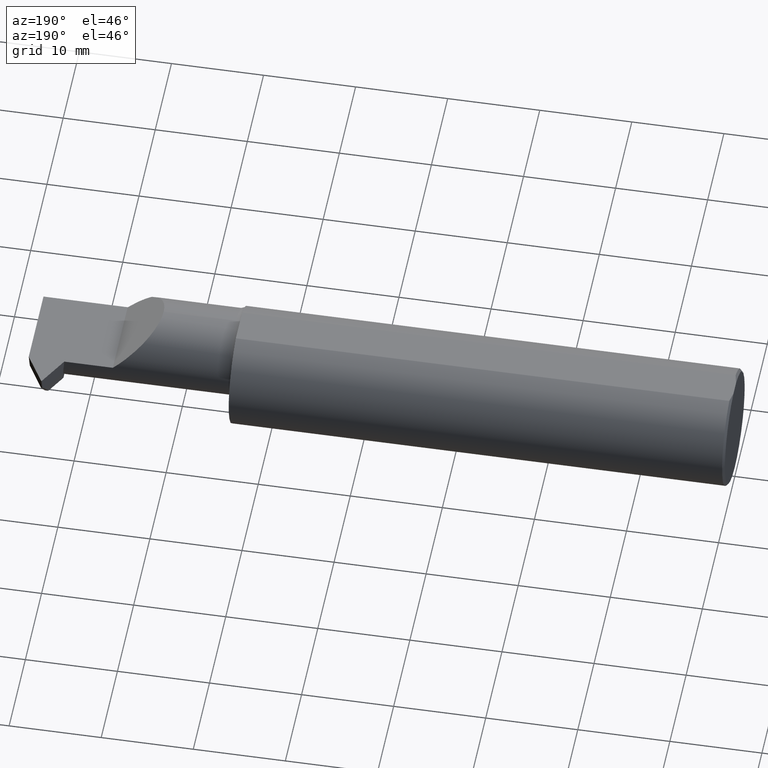
[diagram: clean part render]
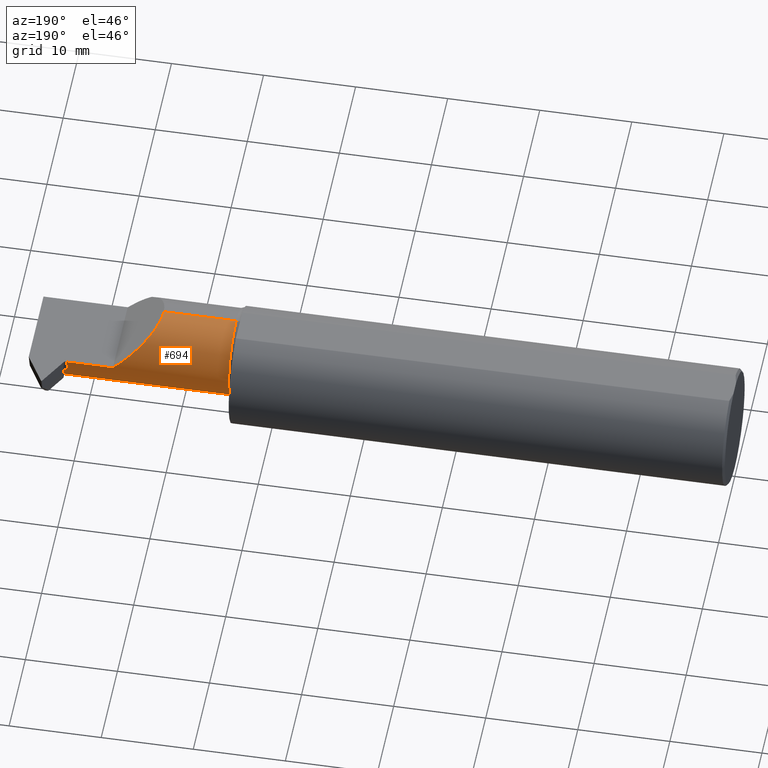
[diagram: same view with one face highlighted and labeled with its STEP entity id]
A machine part, auxiliary view. The second image highlights one B-rep face of the part: STEP entity #694.
In plain terms, the highlighted cylindrical surface (partial cylindrical patch) has radius 4.699 mm, axis along (-1, -0, -0).
Its self-contained STEP definition (entity closure, byte-faithful):
#1 = CARTESIAN_POINT ( 'NONE',  ( 2.120000000000000551, -0.07485000000000026354, 0.000000000000000000 ) ) ;
#30 = ORIENTED_EDGE ( 'NONE', *, *, #716, .T. ) ;
#55 = CIRCLE ( 'NONE', #665, 0.1850000000000001643 ) ;
#57 = CARTESIAN_POINT ( 'NONE',  ( 2.853001020151782363, 0.1007937133637520494, -0.05808860435397016075 ) ) ;
#66 = CARTESIAN_POINT ( 'NONE',  ( 2.855038634497241823, 0.04932020012937191056, -0.1371377460797418013 ) ) ;
#79 = FACE_BOUND ( 'NONE', #389, .T. ) ;
#86 = ORIENTED_EDGE ( 'NONE', *, *, #247, .F. ) ;
#89 = LINE ( 'NONE', #802, #229 ) ;
#99 = LINE ( 'NONE', #812, #797 ) ;
#112 = VERTEX_POINT ( 'NONE', #217 ) ;
#135 =( BOUNDED_CURVE ( )  B_SPLINE_CURVE ( 3, ( #580, #355, #913, #708 ),
 .UNSPECIFIED., .F., .T. ) 
 B_SPLINE_CURVE_WITH_KNOTS ( ( 4, 4 ),
 ( 0.000000000000000000, 1.570796326794895892 ),
 .UNSPECIFIED. ) 
 CURVE ( )  GEOMETRIC_REPRESENTATION_ITEM ( )  RATIONAL_B_SPLINE_CURVE ( ( 1.000000000000000000, 0.8047378541243652705, 0.8047378541243652705, 1.000000000000000000 ) ) 
 REPRESENTATION_ITEM ( '' )  );
#147 = ORIENTED_EDGE ( 'NONE', *, *, #211, .T. ) ;
#150 = CARTESIAN_POINT ( 'NONE',  ( 2.856779504692432248, 0.06187106706801930034, -0.1257736708771146628 ) ) ;
#153 = CARTESIAN_POINT ( 'NONE',  ( 2.640000000000000124, 0.1101499999999998869, 2.574479715540877281E-16 ) ) ;
#155 = CARTESIAN_POINT ( 'NONE',  ( 2.835007723244581168, 0.1101499999999999146, -0.01978022500079915438 ) ) ;
#177 = ORIENTED_EDGE ( 'NONE', *, *, #290, .T. ) ;
#200 = DIRECTION ( 'NONE',  ( -1.000000000000000000, -0.000000000000000000, -0.000000000000000000 ) ) ;
#211 = EDGE_CURVE ( 'NONE', #473, #841, #99, .T. ) ;
#217 = CARTESIAN_POINT ( 'NONE',  ( 2.828837422171168736, 0.1007937133637520355, -0.05808860435397019545 ) ) ;
#226 = DIRECTION ( 'NONE',  ( -1.000000000000000000, -0.000000000000000000, -0.000000000000000000 ) ) ;
#229 = VECTOR ( 'NONE', #458, 39.37007874015748143 ) ;
#247 = EDGE_CURVE ( 'NONE', #595, #112, #89, .T. ) ;
#270 = CARTESIAN_POINT ( 'NONE',  ( 2.145000000000000018, -0.07485000000000026354, 0.000000000000000000 ) ) ;
#281 = CARTESIAN_POINT ( 'NONE',  ( 2.838193708807416282, 0.1101499999999998869, 0.000000000000000000 ) ) ;
#290 = EDGE_CURVE ( 'NONE', #573, #916, #807, .T. ) ;
#296 = CYLINDRICAL_SURFACE ( 'NONE', #386, 0.1850000000000001643 ) ;
#315 = CARTESIAN_POINT ( 'NONE',  ( 2.120000000000000551, 0.1101499999999998869, 2.574479715540877281E-16 ) ) ;
#316 = EDGE_LOOP ( 'NONE', ( #891, #147, #880, #496, #342, #177, #906, #86 ) ) ;
#330 =( BOUNDED_CURVE ( )  B_SPLINE_CURVE ( 3, ( #831, #693, #475, #57 ),
 .UNSPECIFIED., .F., .T. ) 
 B_SPLINE_CURVE_WITH_KNOTS ( ( 4, 4 ),
 ( 3.301290280147274547, 4.552691353827207799 ),
 .UNSPECIFIED. ) 
 CURVE ( )  GEOMETRIC_REPRESENTATION_ITEM ( )  RATIONAL_B_SPLINE_CURVE ( ( 1.000000000000000000, 0.8737020255688406900, 0.8737020255688406900, 1.000000000000000000 ) ) 
 REPRESENTATION_ITEM ( '' )  );
#331 = CARTESIAN_POINT ( 'NONE',  ( 2.145000000000000018, -0.07485000000000026354, 0.1850000000000001643 ) ) ;
#339 = VECTOR ( 'NONE', #814, 39.37007874015748143 ) ;
#342 = ORIENTED_EDGE ( 'NONE', *, *, #703, .T. ) ;
#355 = CARTESIAN_POINT ( 'NONE',  ( 2.454999999999998295, 0.03352049096097719366, 0.1850000000000001643 ) ) ;
#359 = DIRECTION ( 'NONE',  ( 0.000000000000000000, 0.000000000000000000, 1.000000000000000000 ) ) ;
#374 = DIRECTION ( 'NONE',  ( -1.000000000000000000, -0.000000000000000000, -0.000000000000000000 ) ) ;
#386 = AXIS2_PLACEMENT_3D ( 'NONE', #1, #226, #359 ) ;
#389 = EDGE_LOOP ( 'NONE', ( #30, #688 ) ) ;
#431 =( BOUNDED_CURVE ( )  B_SPLINE_CURVE ( 3, ( #777, #513, #155, #281 ),
 .UNSPECIFIED., .F., .T. ) 
 B_SPLINE_CURVE_WITH_KNOTS ( ( 4, 4 ),
 ( 1.251401073679933029, 1.570796326794896780 ),
 .UNSPECIFIED. ) 
 CURVE ( )  GEOMETRIC_REPRESENTATION_ITEM ( )  RATIONAL_B_SPLINE_CURVE ( ( 1.000000000000000000, 0.9915169412256910064, 0.9915169412256910064, 1.000000000000000000 ) ) 
 REPRESENTATION_ITEM ( '' )  );
#458 = DIRECTION ( 'NONE',  ( -1.000000000000000000, -0.000000000000000000, -0.000000000000000000 ) ) ;
#466 = EDGE_CURVE ( 'NONE', #473, #595, #330, .T. ) ;
#467 = CARTESIAN_POINT ( 'NONE',  ( 2.855038634497241823, -0.07485000000000026354, 0.000000000000000000 ) ) ;
#473 = VERTEX_POINT ( 'NONE', #492 ) ;
#475 = CARTESIAN_POINT ( 'NONE',  ( 2.860494700529673473, 0.07483484306337548353, -0.1365809769112830141 ) ) ;
#487 = EDGE_CURVE ( 'NONE', #503, #841, #510, .T. ) ;
#492 = CARTESIAN_POINT ( 'NONE',  ( 2.867068828528063218, -0.07485000000000023579, -0.1850000000000002476 ) ) ;
#495 = DIRECTION ( 'NONE',  ( 0.000000000000000000, 0.000000000000000000, 1.000000000000000000 ) ) ;
#496 = ORIENTED_EDGE ( 'NONE', *, *, #810, .F. ) ;
#501 = CARTESIAN_POINT ( 'NONE',  ( 2.454999999999998295, -0.07485000000000026354, 0.1850000000000001643 ) ) ;
#503 = VERTEX_POINT ( 'NONE', #331 ) ;
#510 = CIRCLE ( 'NONE', #628, 0.1850000000000001643 ) ;
#512 = CARTESIAN_POINT ( 'NONE',  ( 2.855038634497241823, 0.08176624454295289279, -0.09847005608438522128 ) ) ;
#513 = CARTESIAN_POINT ( 'NONE',  ( 2.831862278035922831, 0.1070045547913408696, -0.03930875478472210804 ) ) ;
#532 =( BOUNDED_CURVE ( )  B_SPLINE_CURVE ( 3, ( #66, #150, #727, #654 ),
 .UNSPECIFIED., .F., .F. ) 
 B_SPLINE_CURVE_WITH_KNOTS ( ( 4, 4 ),
 ( 3.004741335995170903, 3.278443971184416217 ),
 .UNSPECIFIED. ) 
 CURVE ( )  GEOMETRIC_REPRESENTATION_ITEM ( )  RATIONAL_B_SPLINE_CURVE ( ( 1.000000000000000000, 0.9937669758935983033, 0.9937669758935983033, 1.000000000000000000 ) ) 
 REPRESENTATION_ITEM ( '' )  );
#539 = LINE ( 'NONE', #803, #339 ) ;
#573 = VERTEX_POINT ( 'NONE', #153 ) ;
#580 = CARTESIAN_POINT ( 'NONE',  ( 2.454999999999998295, -0.07485000000000026354, 0.1850000000000001643 ) ) ;
#595 = VERTEX_POINT ( 'NONE', #778 ) ;
#602 = CARTESIAN_POINT ( 'NONE',  ( 2.145000000000000018, -0.07485000000000023579, -0.1850000000000001643 ) ) ;
#610 = CARTESIAN_POINT ( 'NONE',  ( 2.838193708807416282, 0.1101499999999998869, 0.000000000000000000 ) ) ;
#628 = AXIS2_PLACEMENT_3D ( 'NONE', #270, #200, #495 ) ;
#630 = VERTEX_POINT ( 'NONE', #501 ) ;
#644 = CARTESIAN_POINT ( 'NONE',  ( 2.855038634497241823, 0.04932020012937191056, -0.1371377460797418013 ) ) ;
#654 = CARTESIAN_POINT ( 'NONE',  ( 2.855038634497241823, 0.08176624454295289279, -0.09847005608438522128 ) ) ;
#659 = DIRECTION ( 'NONE',  ( -1.000000000000000000, -0.000000000000000000, -0.000000000000000000 ) ) ;
#665 = AXIS2_PLACEMENT_3D ( 'NONE', #467, #374, #879 ) ;
#673 = VERTEX_POINT ( 'NONE', #512 ) ;
#688 = ORIENTED_EDGE ( 'NONE', *, *, #868, .T. ) ;
#693 = CARTESIAN_POINT ( 'NONE',  ( 2.865861827217638158, 0.007823547746227293639, -0.1850000000000002198 ) ) ;
#694 = ADVANCED_FACE ( 'NONE', ( #79, #724 ), #296, .T. ) ;
#695 = VERTEX_POINT ( 'NONE', #644 ) ;
#703 = EDGE_CURVE ( 'NONE', #630, #573, #135, .T. ) ;
#708 = CARTESIAN_POINT ( 'NONE',  ( 2.640000000000000124, 0.1101499999999998869, 2.574479715540877281E-16 ) ) ;
#711 = EDGE_CURVE ( 'NONE', #112, #916, #431, .T. ) ;
#716 = EDGE_CURVE ( 'NONE', #695, #673, #532, .T. ) ;
#724 = FACE_OUTER_BOUND ( 'NONE', #316, .T. ) ;
#727 = CARTESIAN_POINT ( 'NONE',  ( 2.856779504692432248, 0.07275425034962824944, -0.1128035981023959022 ) ) ;
#777 = CARTESIAN_POINT ( 'NONE',  ( 2.828837422171168736, 0.1007937133637520355, -0.05808860435397019545 ) ) ;
#778 = CARTESIAN_POINT ( 'NONE',  ( 2.853001020151782363, 0.1007937133637520494, -0.05808860435397016075 ) ) ;
#786 = VECTOR ( 'NONE', #877, 39.37007874015748143 ) ;
#797 = VECTOR ( 'NONE', #659, 39.37007874015748143 ) ;
#802 = CARTESIAN_POINT ( 'NONE',  ( 2.120000000000000551, 0.1007937133637520494, -0.05808860435397016075 ) ) ;
#803 = CARTESIAN_POINT ( 'NONE',  ( 2.120000000000000551, -0.07485000000000026354, 0.1850000000000001643 ) ) ;
#807 = LINE ( 'NONE', #315, #786 ) ;
#810 = EDGE_CURVE ( 'NONE', #630, #503, #539, .T. ) ;
#812 = CARTESIAN_POINT ( 'NONE',  ( 2.120000000000000551, -0.07485000000000023579, -0.1850000000000001643 ) ) ;
#814 = DIRECTION ( 'NONE',  ( -1.000000000000000000, -0.000000000000000000, -0.000000000000000000 ) ) ;
#831 = CARTESIAN_POINT ( 'NONE',  ( 2.867068828528063218, -0.07485000000000023579, -0.1850000000000002476 ) ) ;
#841 = VERTEX_POINT ( 'NONE', #602 ) ;
#868 = EDGE_CURVE ( 'NONE', #673, #695, #55, .T. ) ;
#877 = DIRECTION ( 'NONE',  ( 1.000000000000000000, 0.000000000000000000, 0.000000000000000000 ) ) ;
#879 = DIRECTION ( 'NONE',  ( 0.000000000000000000, -7.106496470005003401E-15, -1.000000000000000000 ) ) ;
#880 = ORIENTED_EDGE ( 'NONE', *, *, #487, .F. ) ;
#891 = ORIENTED_EDGE ( 'NONE', *, *, #466, .F. ) ;
#906 = ORIENTED_EDGE ( 'NONE', *, *, #711, .F. ) ;
#913 = CARTESIAN_POINT ( 'NONE',  ( 2.531629509039021730, 0.1101499999999998591, 0.1083704909609775613 ) ) ;
#916 = VERTEX_POINT ( 'NONE', #610 ) ;